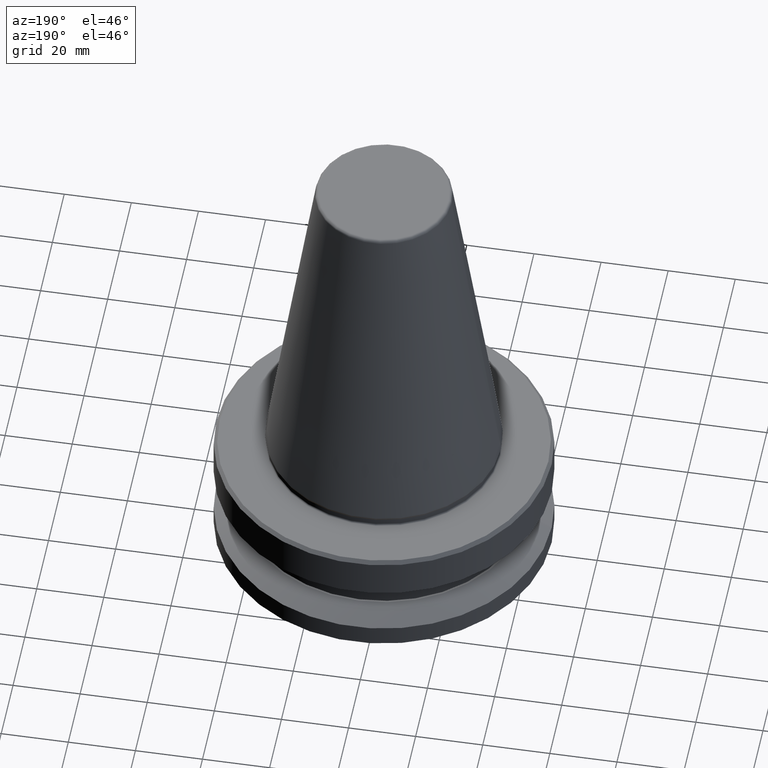
[diagram: clean part render]
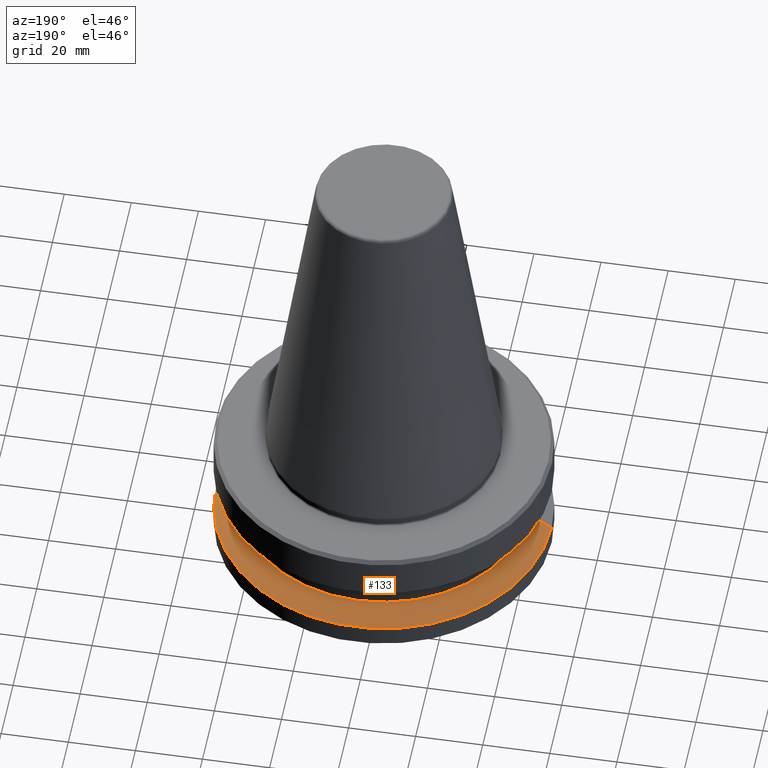
[diagram: same view with one face highlighted and labeled with its STEP entity id]
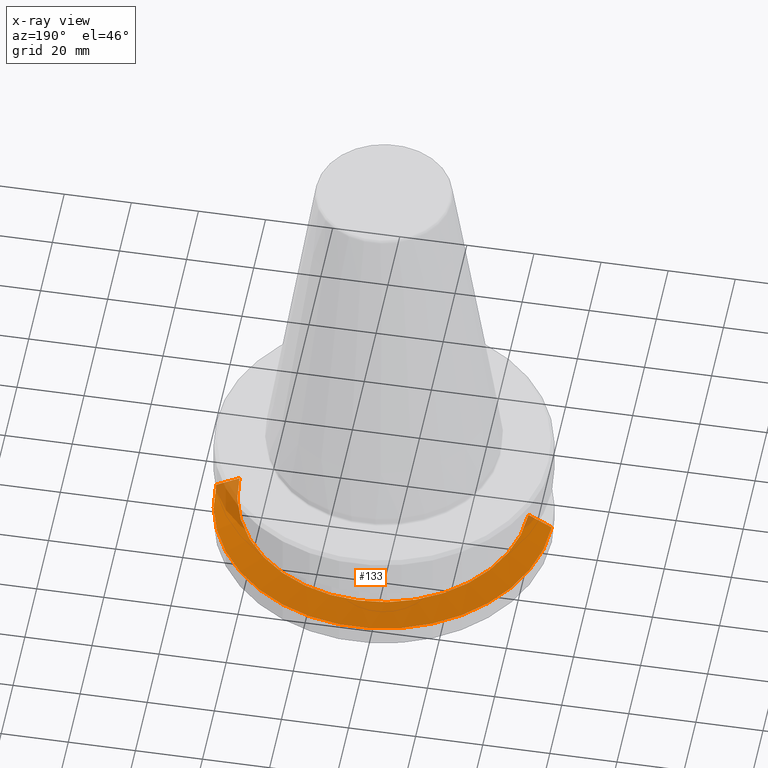
[diagram: x-ray of the same camera — body ghosted, the highlighted face saturated]
A machine part, auxiliary view. The second image highlights one B-rep face of the part: STEP entity #133.
The next image is the same camera in x-ray: the body ghosted, the highlighted face saturated — about 6% of this face is hidden behind the body in this view.
In plain terms, the highlighted conical surface has half-angle 60 deg.
Its self-contained STEP definition (entity closure, byte-faithful):
#47 = DIRECTION ( 'NONE',  ( 1.000000000000000000, 0.0000000000000000000, 0.0000000000000000000 ) ) ;
#57 = VERTEX_POINT ( 'NONE', #836 ) ;
#89 = VECTOR ( 'NONE', #864, 1000.000000000000000 ) ;
#115 = CARTESIAN_POINT ( 'NONE',  ( -43.07217782648930900, 0.0000000000000000000, -26.69999999993998000 ) ) ;
#116 = CIRCLE ( 'NONE', #845, 49.99999999999982200 ) ;
#122 = DIRECTION ( 'NONE',  ( -0.0000000000000000000, -0.0000000000000000000, 1.000000000000000000 ) ) ;
#132 = VECTOR ( 'NONE', #426, 1000.000000000000000 ) ;
#133 = ADVANCED_FACE ( 'NONE', ( #301 ), #952, .T. ) ;
#138 = CARTESIAN_POINT ( 'NONE',  ( -49.99999999999982200, 0.0000000000000000000, -30.69977999671412400 ) ) ;
#142 = DIRECTION ( 'NONE',  ( 0.0000000000000000000, 0.0000000000000000000, -1.000000000000000000 ) ) ;
#205 = VERTEX_POINT ( 'NONE', #803 ) ;
#234 = ORIENTED_EDGE ( 'NONE', *, *, #283, .T. ) ;
#264 = EDGE_CURVE ( 'NONE', #768, #976, #702, .T. ) ;
#283 = EDGE_CURVE ( 'NONE', #205, #57, #476, .T. ) ;
#296 = CARTESIAN_POINT ( 'NONE',  ( 49.99999999999982200, 6.123233995736744000E-015, -30.69977999671412400 ) ) ;
#301 = FACE_OUTER_BOUND ( 'NONE', #893, .T. ) ;
#346 = EDGE_CURVE ( 'NONE', #57, #976, #116, .T. ) ;
#400 = DIRECTION ( 'NONE',  ( 1.000000000000000000, 0.0000000000000000000, 0.0000000000000000000 ) ) ;
#426 = DIRECTION ( 'NONE',  ( -0.8660254037844390400, 0.0000000000000000000, -0.4999999999999993300 ) ) ;
#429 = DIRECTION ( 'NONE',  ( -1.000000000000000000, 0.0000000000000000000, 0.0000000000000000000 ) ) ;
#448 = ORIENTED_EDGE ( 'NONE', *, *, #770, .F. ) ;
#476 = LINE ( 'NONE', #296, #89 ) ;
#508 = CIRCLE ( 'NONE', #605, 43.07217782648930900 ) ;
#605 = AXIS2_PLACEMENT_3D ( 'NONE', #614, #765, #400 ) ;
#614 = CARTESIAN_POINT ( 'NONE',  ( 0.0000000000000000000, 0.0000000000000000000, -26.69999999993998000 ) ) ;
#622 = ORIENTED_EDGE ( 'NONE', *, *, #264, .F. ) ;
#702 = LINE ( 'NONE', #138, #132 ) ;
#703 = CARTESIAN_POINT ( 'NONE',  ( -49.99999999999982200, 6.123233995736744000E-015, -30.69977999671412400 ) ) ;
#728 = CARTESIAN_POINT ( 'NONE',  ( 0.0000000000000000000, 0.0000000000000000000, -30.69977999671412400 ) ) ;
#738 = AXIS2_PLACEMENT_3D ( 'NONE', #808, #142, #429 ) ;
#765 = DIRECTION ( 'NONE',  ( -0.0000000000000000000, -0.0000000000000000000, 1.000000000000000000 ) ) ;
#768 = VERTEX_POINT ( 'NONE', #115 ) ;
#770 = EDGE_CURVE ( 'NONE', #205, #768, #508, .T. ) ;
#803 = CARTESIAN_POINT ( 'NONE',  ( 43.07217782648930900, 5.699027233244158500E-015, -26.69999999993998000 ) ) ;
#808 = CARTESIAN_POINT ( 'NONE',  ( 0.0000000000000000000, 0.0000000000000000000, -30.69977999671412400 ) ) ;
#836 = CARTESIAN_POINT ( 'NONE',  ( 49.99999999999982200, 0.0000000000000000000, -30.69977999671412400 ) ) ;
#845 = AXIS2_PLACEMENT_3D ( 'NONE', #728, #122, #47 ) ;
#864 = DIRECTION ( 'NONE',  ( 0.8660254037844390400, 1.060575238724907400E-016, -0.4999999999999993300 ) ) ;
#869 = ORIENTED_EDGE ( 'NONE', *, *, #346, .T. ) ;
#893 = EDGE_LOOP ( 'NONE', ( #448, #234, #869, #622 ) ) ;
#952 = CONICAL_SURFACE ( 'NONE', #738, 49.99999999999982200, 1.047197551196598500 ) ;
#976 = VERTEX_POINT ( 'NONE', #703 ) ;